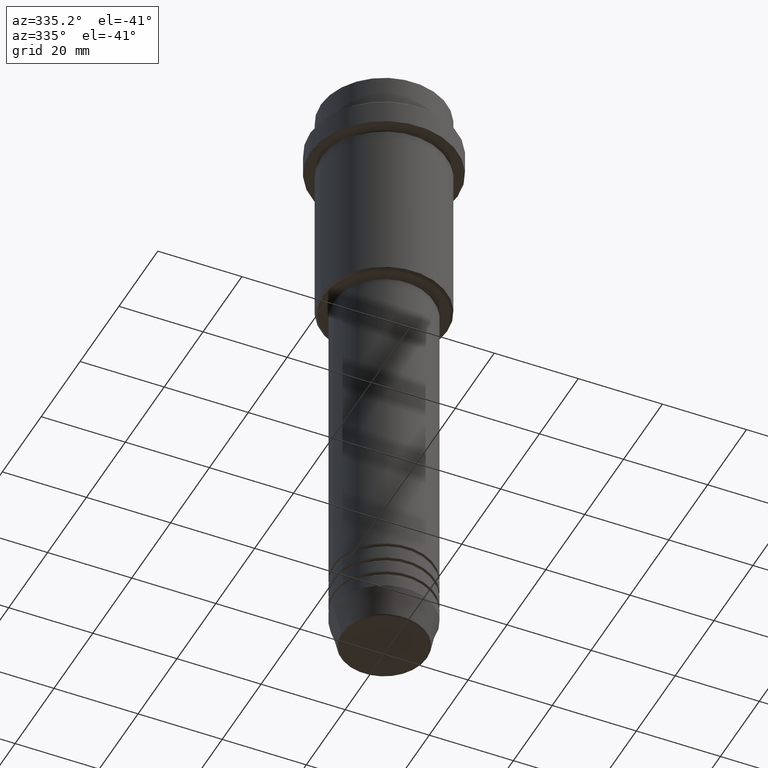
[diagram: clean part render]
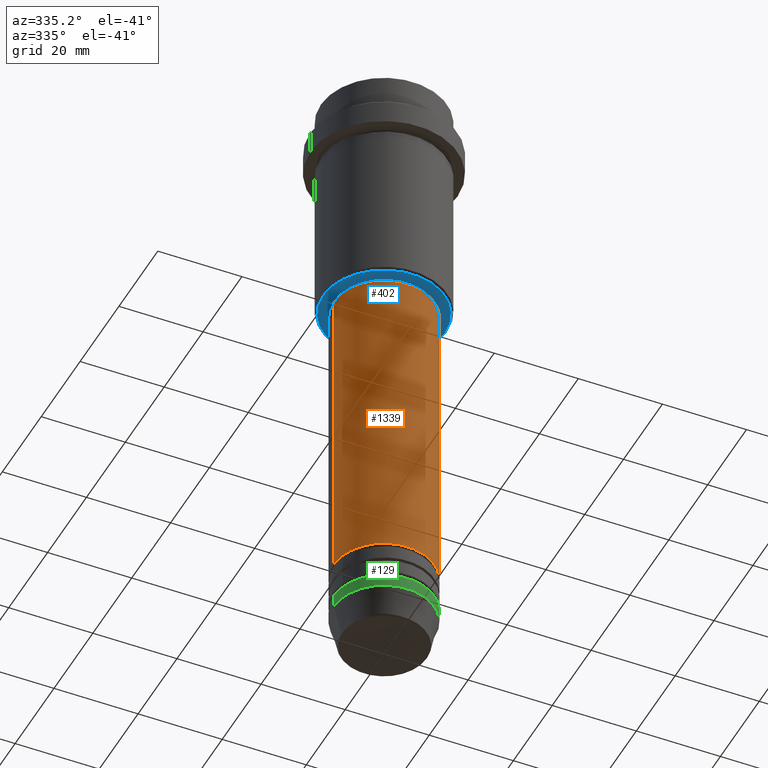
[diagram: same view with three faces highlighted in distinct colors, each labeled with its STEP entity id]
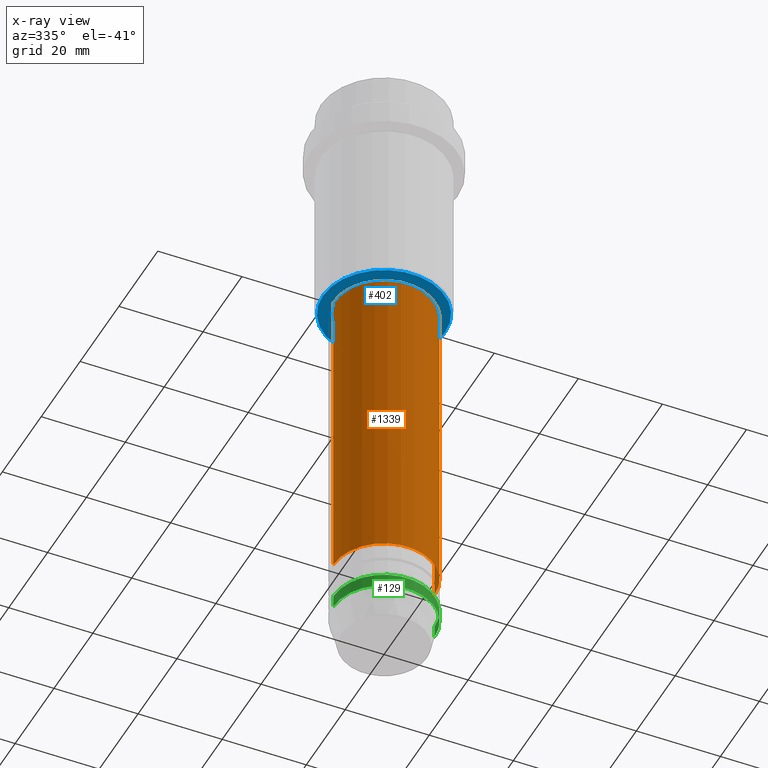
[diagram: x-ray of the same camera — body ghosted, the three highlighted faces saturated]
A machine part, auxiliary view with three faces highlighted in distinct colors.
The next image is the same camera in x-ray (body ghosted, the three faces saturated) — at least one of them is partly hidden behind the body in this view.
Their STEP definitions:

[orange] entity #1339 — the highlighted cylindrical surface (partial cylindrical patch) has radius 12 mm, axis along (-0, -0, 1).
#10 = DIRECTION ( 'NONE',  ( -0.000000000000000000, -0.000000000000000000, 1.000000000000000000 ) ) ;
#39 = VERTEX_POINT ( 'NONE', #386 ) ;
#52 = CIRCLE ( 'NONE', #181, 11.99999999999999822 ) ;
#80 = DIRECTION ( 'NONE',  ( -0.000000000000000000, -0.000000000000000000, 1.000000000000000000 ) ) ;
#166 = DIRECTION ( 'NONE',  ( -0.000000000000000000, -0.000000000000000000, 1.000000000000000000 ) ) ;
#181 = AXIS2_PLACEMENT_3D ( 'NONE', #1298, #10, #871 ) ;
#200 = DIRECTION ( 'NONE',  ( 1.000000000000000000, 0.000000000000000000, 0.000000000000000000 ) ) ;
#211 = DIRECTION ( 'NONE',  ( -0.000000000000000000, -0.000000000000000000, 1.000000000000000000 ) ) ;
#214 = AXIS2_PLACEMENT_3D ( 'NONE', #978, #80, #959 ) ;
#231 = LINE ( 'NONE', #676, #791 ) ;
#340 = VERTEX_POINT ( 'NONE', #1256 ) ;
#352 = VERTEX_POINT ( 'NONE', #703 ) ;
#386 = CARTESIAN_POINT ( 'NONE',  ( -11.99999999999999822, 1.469576158976823750E-15, -55.99999999999997158 ) ) ;
#392 = EDGE_CURVE ( 'NONE', #352, #340, #895, .T. ) ;
#440 = CYLINDRICAL_SURFACE ( 'NONE', #214, 12.00000000000000000 ) ;
#561 = VECTOR ( 'NONE', #166, 1000.000000000000000 ) ;
#598 = ORIENTED_EDGE ( 'NONE', *, *, #1276, .F. ) ;
#668 = ORIENTED_EDGE ( 'NONE', *, *, #392, .T. ) ;
#676 = CARTESIAN_POINT ( 'NONE',  ( 12.00000000000000000, 0.000000000000000000, 0.000000000000000000 ) ) ;
#703 = CARTESIAN_POINT ( 'NONE',  ( -12.00000000000000000, 1.469576158976823947E-15, -130.9999999999998579 ) ) ;
#722 = LINE ( 'NONE', #1145, #561 ) ;
#755 = FACE_OUTER_BOUND ( 'NONE', #1062, .T. ) ;
#773 = CARTESIAN_POINT ( 'NONE',  ( 11.99999999999999822, 0.000000000000000000, -55.99999999999997158 ) ) ;
#791 = VECTOR ( 'NONE', #1104, 1000.000000000000000 ) ;
#829 = AXIS2_PLACEMENT_3D ( 'NONE', #867, #211, #200 ) ;
#867 = CARTESIAN_POINT ( 'NONE',  ( 0.000000000000000000, 0.000000000000000000, -130.9999999999998579 ) ) ;
#871 = DIRECTION ( 'NONE',  ( 1.000000000000000000, 0.000000000000000000, 0.000000000000000000 ) ) ;
#895 = CIRCLE ( 'NONE', #829, 12.00000000000000000 ) ;
#959 = DIRECTION ( 'NONE',  ( 1.000000000000000000, 0.000000000000000000, 0.000000000000000000 ) ) ;
#978 = CARTESIAN_POINT ( 'NONE',  ( 0.000000000000000000, 0.000000000000000000, 0.000000000000000000 ) ) ;
#1027 = EDGE_CURVE ( 'NONE', #39, #1307, #52, .T. ) ;
#1062 = EDGE_LOOP ( 'NONE', ( #598, #668, #1072, #1112 ) ) ;
#1072 = ORIENTED_EDGE ( 'NONE', *, *, #1252, .T. ) ;
#1104 = DIRECTION ( 'NONE',  ( -0.000000000000000000, -0.000000000000000000, 1.000000000000000000 ) ) ;
#1112 = ORIENTED_EDGE ( 'NONE', *, *, #1027, .F. ) ;
#1145 = CARTESIAN_POINT ( 'NONE',  ( -12.00000000000000000, 1.469576158976823947E-15, 0.000000000000000000 ) ) ;
#1252 = EDGE_CURVE ( 'NONE', #340, #1307, #231, .T. ) ;
#1256 = CARTESIAN_POINT ( 'NONE',  ( 12.00000000000000000, 0.000000000000000000, -130.9999999999998579 ) ) ;
#1276 = EDGE_CURVE ( 'NONE', #352, #39, #722, .T. ) ;
#1298 = CARTESIAN_POINT ( 'NONE',  ( 0.000000000000000000, 0.000000000000000000, -55.99999999999997158 ) ) ;
#1307 = VERTEX_POINT ( 'NONE', #773 ) ;
#1339 = ADVANCED_FACE ( 'NONE', ( #755 ), #440, .T. ) ;

[blue] entity #402 — the highlighted planar face has unit normal (0, 0, -1).
#23 = DIRECTION ( 'NONE',  ( 0.000000000000000000, 0.000000000000000000, -1.000000000000000000 ) ) ;
#103 = FACE_OUTER_BOUND ( 'NONE', #596, .T. ) ;
#117 = DIRECTION ( 'NONE',  ( -1.000000000000000000, 0.000000000000000000, 0.000000000000000000 ) ) ;
#134 = ORIENTED_EDGE ( 'NONE', *, *, #819, .T. ) ;
#162 = AXIS2_PLACEMENT_3D ( 'NONE', #728, #1185, #860 ) ;
#170 = EDGE_CURVE ( 'NONE', #1227, #489, #965, .T. ) ;
#321 = DIRECTION ( 'NONE',  ( 1.000000000000000000, 0.000000000000000000, 0.000000000000000000 ) ) ;
#383 = CIRCLE ( 'NONE', #705, 11.49999999999999467 ) ;
#402 = ADVANCED_FACE ( 'NONE', ( #103, #1059 ), #625, .T. ) ;
#434 = DIRECTION ( 'NONE',  ( -0.000000000000000000, -0.000000000000000000, 1.000000000000000000 ) ) ;
#455 = CARTESIAN_POINT ( 'NONE',  ( 11.49999999999999467, 0.000000000000000000, -54.99999999999998579 ) ) ;
#484 = VERTEX_POINT ( 'NONE', #1211 ) ;
#489 = VERTEX_POINT ( 'NONE', #455 ) ;
#493 = CIRCLE ( 'NONE', #1139, 14.50000000000001066 ) ;
#569 = EDGE_CURVE ( 'NONE', #484, #1326, #493, .T. ) ;
#577 = AXIS2_PLACEMENT_3D ( 'NONE', #659, #1311, #1200 ) ;
#596 = EDGE_LOOP ( 'NONE', ( #134, #969 ) ) ;
#625 = PLANE ( 'NONE',  #1309 ) ;
#649 = CARTESIAN_POINT ( 'NONE',  ( 14.50000000000001066, 0.000000000000000000, -54.99999999999999289 ) ) ;
#659 = CARTESIAN_POINT ( 'NONE',  ( 0.000000000000000000, 0.000000000000000000, -54.99999999999998579 ) ) ;
#679 = CIRCLE ( 'NONE', #162, 14.50000000000001066 ) ;
#705 = AXIS2_PLACEMENT_3D ( 'NONE', #1078, #434, #321 ) ;
#728 = CARTESIAN_POINT ( 'NONE',  ( 0.000000000000000000, 0.000000000000000000, -54.99999999999999289 ) ) ;
#819 = EDGE_CURVE ( 'NONE', #1326, #484, #679, .T. ) ;
#860 = DIRECTION ( 'NONE',  ( -1.000000000000000000, 0.000000000000000000, 0.000000000000000000 ) ) ;
#884 = CARTESIAN_POINT ( 'NONE',  ( 0.000000000000000000, 0.000000000000000000, -54.99999999999999289 ) ) ;
#890 = ORIENTED_EDGE ( 'NONE', *, *, #170, .T. ) ;
#904 = CARTESIAN_POINT ( 'NONE',  ( -11.49999999999999467, 1.408343819019455781E-15, -54.99999999999998579 ) ) ;
#957 = DIRECTION ( 'NONE',  ( 0.000000000000000000, 0.000000000000000000, -1.000000000000000000 ) ) ;
#965 = CIRCLE ( 'NONE', #577, 11.49999999999999467 ) ;
#969 = ORIENTED_EDGE ( 'NONE', *, *, #569, .T. ) ;
#1049 = DIRECTION ( 'NONE',  ( -1.000000000000000000, 0.000000000000000000, -0.000000000000000000 ) ) ;
#1059 = FACE_BOUND ( 'NONE', #1107, .T. ) ;
#1073 = CARTESIAN_POINT ( 'NONE',  ( 0.000000000000000000, 15.00000000000000000, -54.99999999999999289 ) ) ;
#1078 = CARTESIAN_POINT ( 'NONE',  ( 0.000000000000000000, 0.000000000000000000, -54.99999999999998579 ) ) ;
#1107 = EDGE_LOOP ( 'NONE', ( #1234, #890 ) ) ;
#1139 = AXIS2_PLACEMENT_3D ( 'NONE', #884, #23, #117 ) ;
#1185 = DIRECTION ( 'NONE',  ( 0.000000000000000000, 0.000000000000000000, -1.000000000000000000 ) ) ;
#1200 = DIRECTION ( 'NONE',  ( 1.000000000000000000, 0.000000000000000000, 0.000000000000000000 ) ) ;
#1211 = CARTESIAN_POINT ( 'NONE',  ( -14.50000000000001066, 1.806354028742346591E-15, -54.99999999999999289 ) ) ;
#1227 = VERTEX_POINT ( 'NONE', #904 ) ;
#1234 = ORIENTED_EDGE ( 'NONE', *, *, #1324, .T. ) ;
#1309 = AXIS2_PLACEMENT_3D ( 'NONE', #1073, #957, #1049 ) ;
#1311 = DIRECTION ( 'NONE',  ( -0.000000000000000000, -0.000000000000000000, 1.000000000000000000 ) ) ;
#1324 = EDGE_CURVE ( 'NONE', #489, #1227, #383, .T. ) ;
#1326 = VERTEX_POINT ( 'NONE', #649 ) ;

[green] entity #129 — the highlighted cylindrical surface (partial cylindrical patch) has radius 12 mm, axis along (-0, -0, 1).
#2 = DIRECTION ( 'NONE',  ( -0.000000000000000000, -0.000000000000000000, 1.000000000000000000 ) ) ;
#36 = DIRECTION ( 'NONE',  ( 1.000000000000000000, 0.000000000000000000, 0.000000000000000000 ) ) ;
#67 = DIRECTION ( 'NONE',  ( -0.000000000000000000, -0.000000000000000000, 1.000000000000000000 ) ) ;
#71 = DIRECTION ( 'NONE',  ( -0.000000000000000000, -0.000000000000000000, 1.000000000000000000 ) ) ;
#86 = DIRECTION ( 'NONE',  ( 1.000000000000000000, 0.000000000000000000, 0.000000000000000000 ) ) ;
#129 = ADVANCED_FACE ( 'NONE', ( #949 ), #847, .T. ) ;
#153 = VERTEX_POINT ( 'NONE', #414 ) ;
#177 = AXIS2_PLACEMENT_3D ( 'NONE', #889, #338, #36 ) ;
#294 = LINE ( 'NONE', #317, #739 ) ;
#317 = CARTESIAN_POINT ( 'NONE',  ( 12.00000000000000000, 0.000000000000000000, 0.000000000000000000 ) ) ;
#338 = DIRECTION ( 'NONE',  ( -0.000000000000000000, -0.000000000000000000, 1.000000000000000000 ) ) ;
#414 = CARTESIAN_POINT ( 'NONE',  ( 12.00000000000000000, 0.000000000000000000, -139.9999999999999716 ) ) ;
#467 = VERTEX_POINT ( 'NONE', #543 ) ;
#523 = EDGE_CURVE ( 'NONE', #604, #153, #1121, .T. ) ;
#526 = CARTESIAN_POINT ( 'NONE',  ( 0.000000000000000000, 0.000000000000000000, 0.000000000000000000 ) ) ;
#543 = CARTESIAN_POINT ( 'NONE',  ( 12.00000000000000000, 0.000000000000000000, -143.0000000000000000 ) ) ;
#554 = VERTEX_POINT ( 'NONE', #873 ) ;
#604 = VERTEX_POINT ( 'NONE', #681 ) ;
#614 = DIRECTION ( 'NONE',  ( 1.000000000000000000, 0.000000000000000000, 0.000000000000000000 ) ) ;
#648 = DIRECTION ( 'NONE',  ( -0.000000000000000000, -0.000000000000000000, 1.000000000000000000 ) ) ;
#681 = CARTESIAN_POINT ( 'NONE',  ( -12.00000000000000000, 1.469576158976823947E-15, -139.9999999999999716 ) ) ;
#727 = CARTESIAN_POINT ( 'NONE',  ( 0.000000000000000000, 0.000000000000000000, -143.0000000000000000 ) ) ;
#739 = VECTOR ( 'NONE', #71, 1000.000000000000000 ) ;
#745 = ORIENTED_EDGE ( 'NONE', *, *, #977, .T. ) ;
#757 = EDGE_CURVE ( 'NONE', #467, #153, #294, .T. ) ;
#827 = AXIS2_PLACEMENT_3D ( 'NONE', #526, #648, #86 ) ;
#839 = ORIENTED_EDGE ( 'NONE', *, *, #757, .T. ) ;
#847 = CYLINDRICAL_SURFACE ( 'NONE', #827, 12.00000000000000000 ) ;
#873 = CARTESIAN_POINT ( 'NONE',  ( -12.00000000000000000, 1.469576158976823947E-15, -143.0000000000000000 ) ) ;
#889 = CARTESIAN_POINT ( 'NONE',  ( 0.000000000000000000, 0.000000000000000000, -139.9999999999999716 ) ) ;
#949 = FACE_OUTER_BOUND ( 'NONE', #979, .T. ) ;
#977 = EDGE_CURVE ( 'NONE', #554, #467, #1142, .T. ) ;
#979 = EDGE_LOOP ( 'NONE', ( #1136, #745, #839, #985 ) ) ;
#985 = ORIENTED_EDGE ( 'NONE', *, *, #523, .F. ) ;
#1038 = VECTOR ( 'NONE', #2, 1000.000000000000000 ) ;
#1081 = LINE ( 'NONE', #1183, #1038 ) ;
#1121 = CIRCLE ( 'NONE', #177, 12.00000000000000000 ) ;
#1125 = AXIS2_PLACEMENT_3D ( 'NONE', #727, #67, #614 ) ;
#1136 = ORIENTED_EDGE ( 'NONE', *, *, #1146, .F. ) ;
#1142 = CIRCLE ( 'NONE', #1125, 12.00000000000000000 ) ;
#1146 = EDGE_CURVE ( 'NONE', #554, #604, #1081, .T. ) ;
#1183 = CARTESIAN_POINT ( 'NONE',  ( -12.00000000000000000, 1.469576158976823947E-15, 0.000000000000000000 ) ) ;